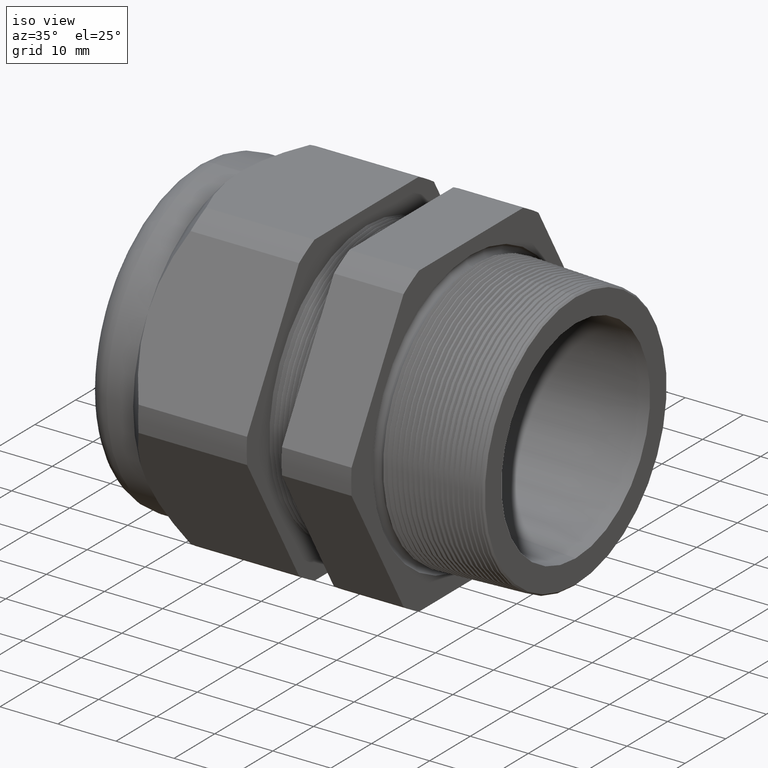
[diagram: clean part render]
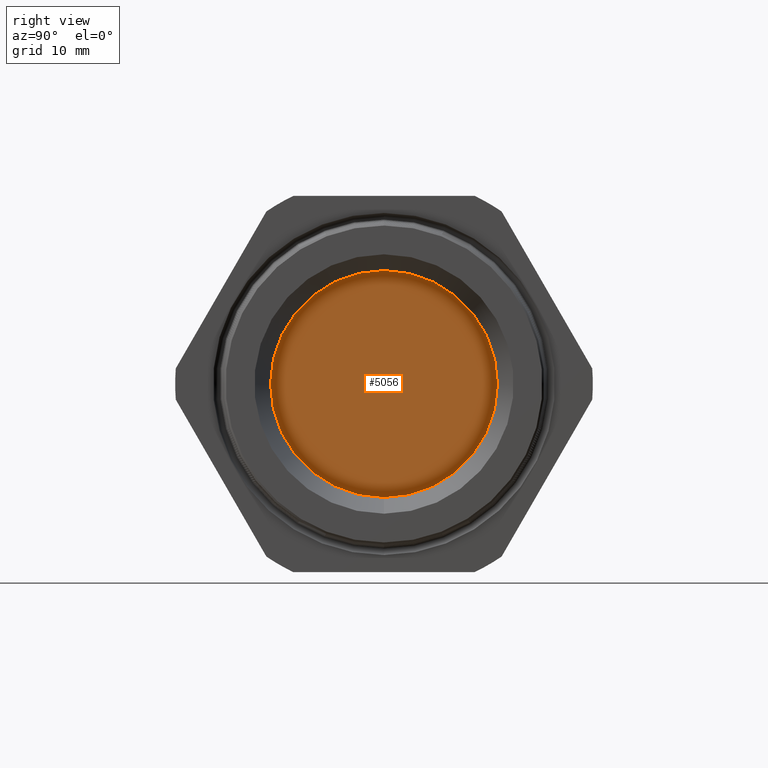
[diagram: tour spotlight — one face highlighted and labeled with its STEP entity id]
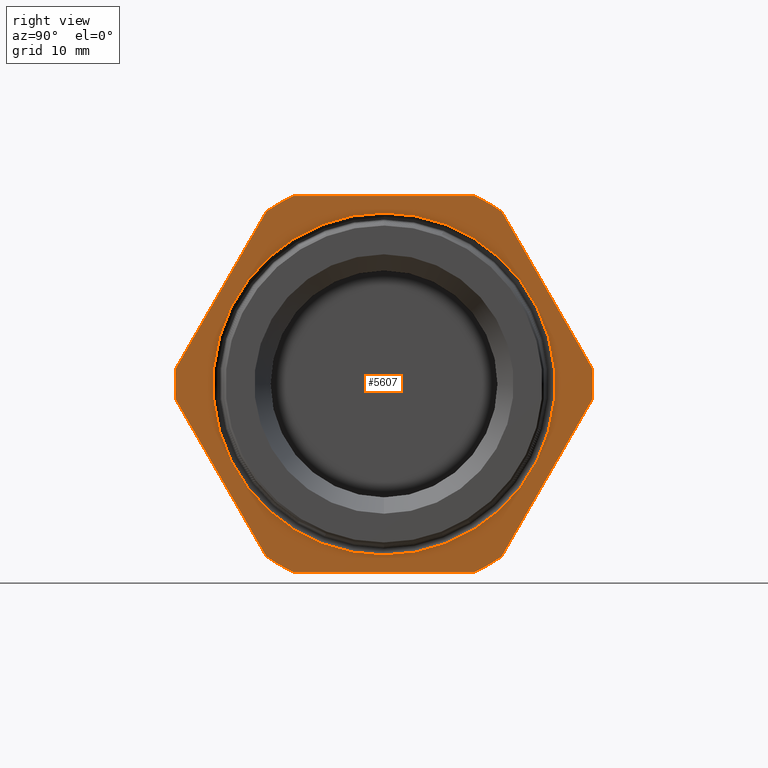
[diagram: tour spotlight — one face highlighted and labeled with its STEP entity id]
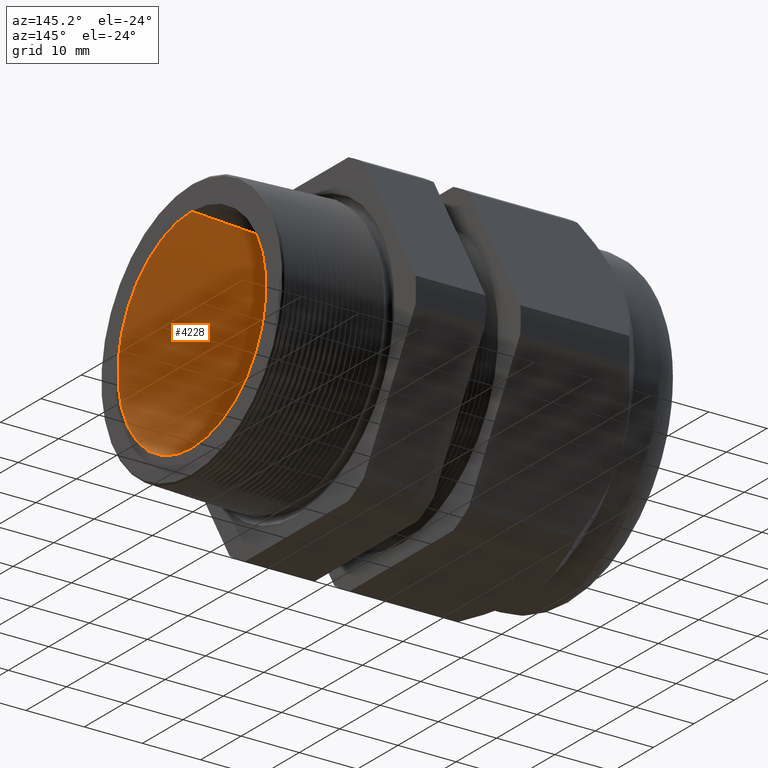
[diagram: tour spotlight — one face highlighted and labeled with its STEP entity id]
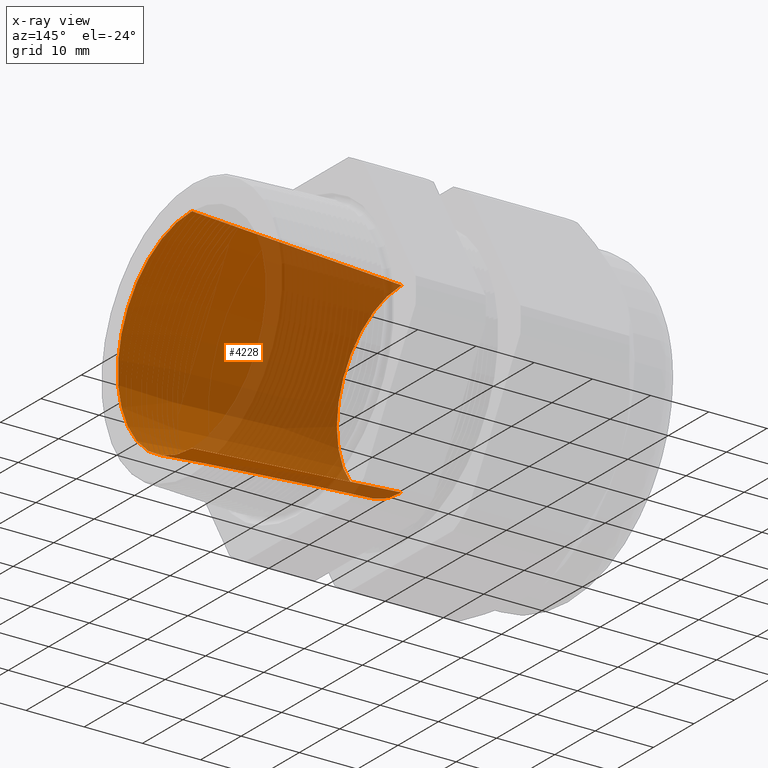
[diagram: x-ray of the same camera — body ghosted, this tour face saturated]
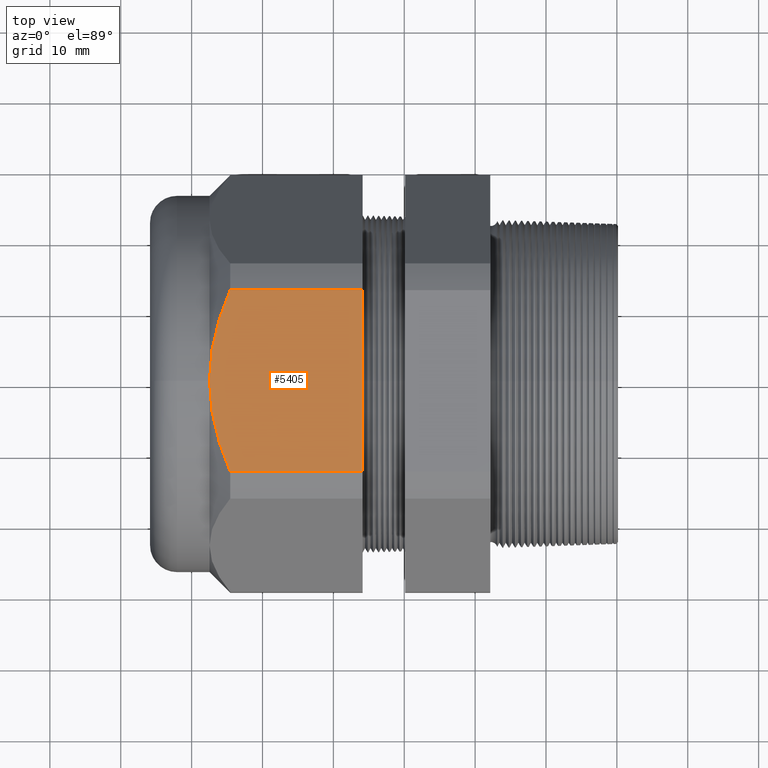
[diagram: tour spotlight — one face highlighted and labeled with its STEP entity id]
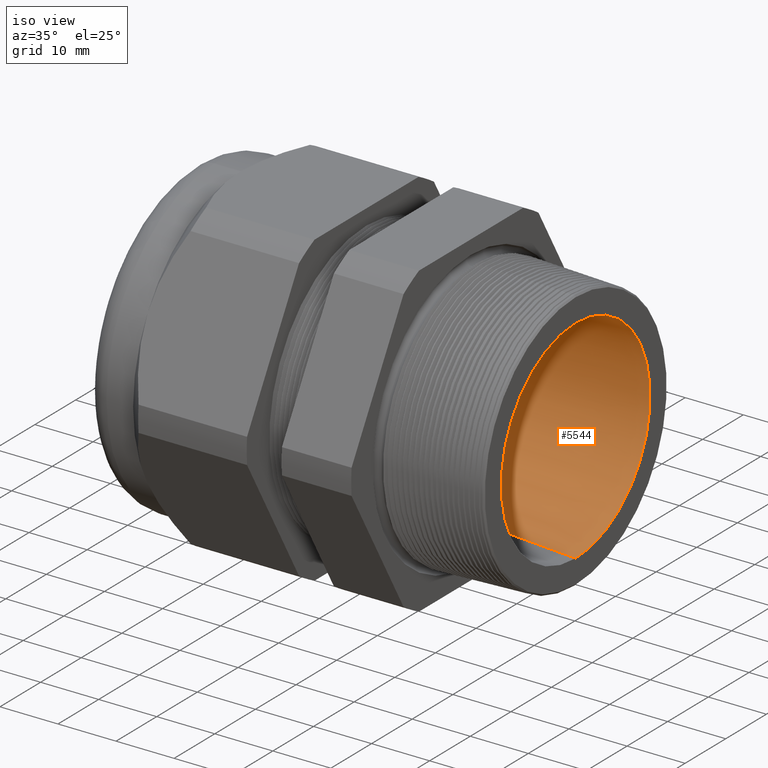
[diagram: tour spotlight — one face highlighted and labeled with its STEP entity id]
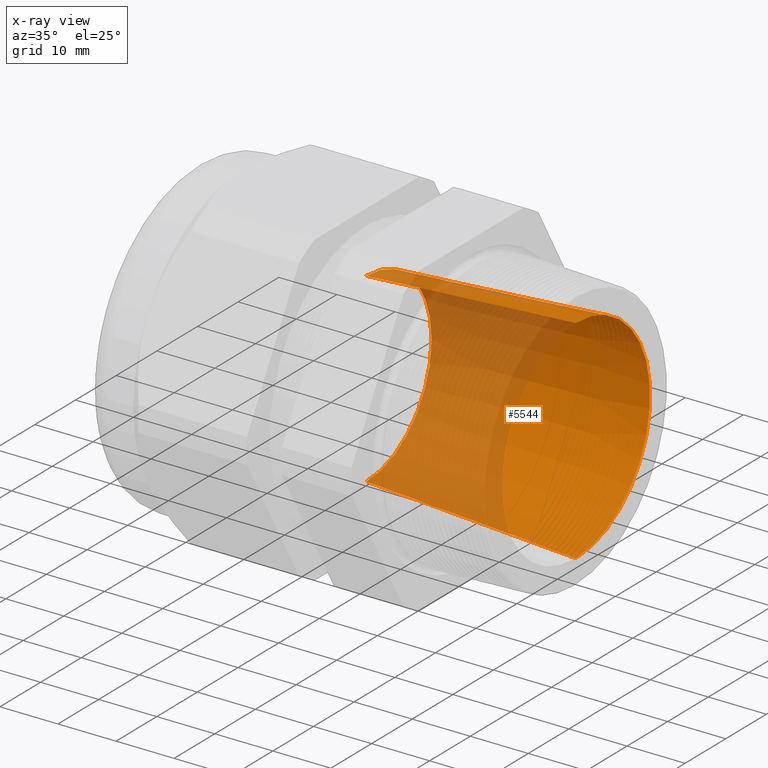
[diagram: x-ray of the same camera — body ghosted, this tour face saturated]
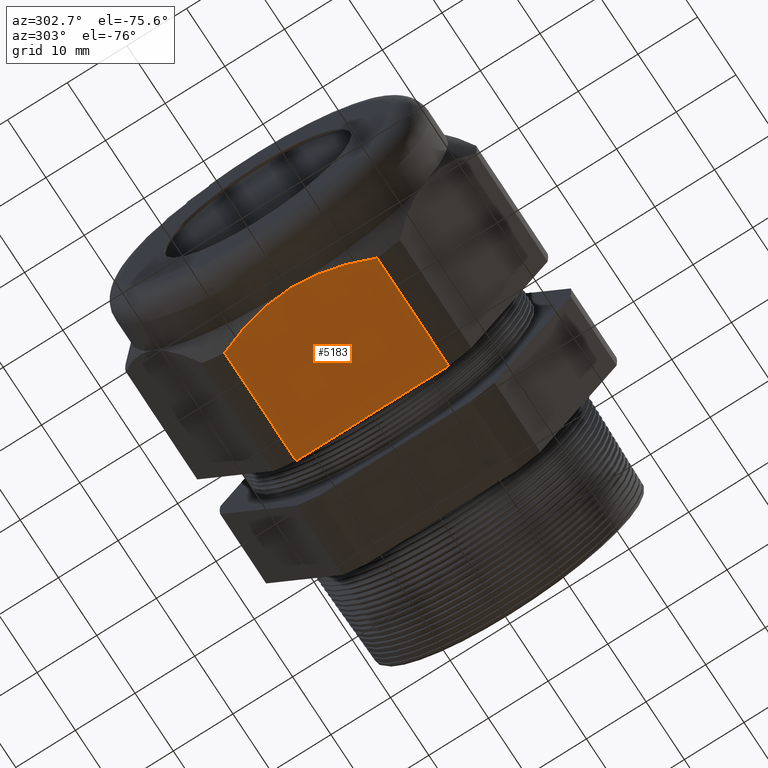
[diagram: tour spotlight — one face highlighted and labeled with its STEP entity id]
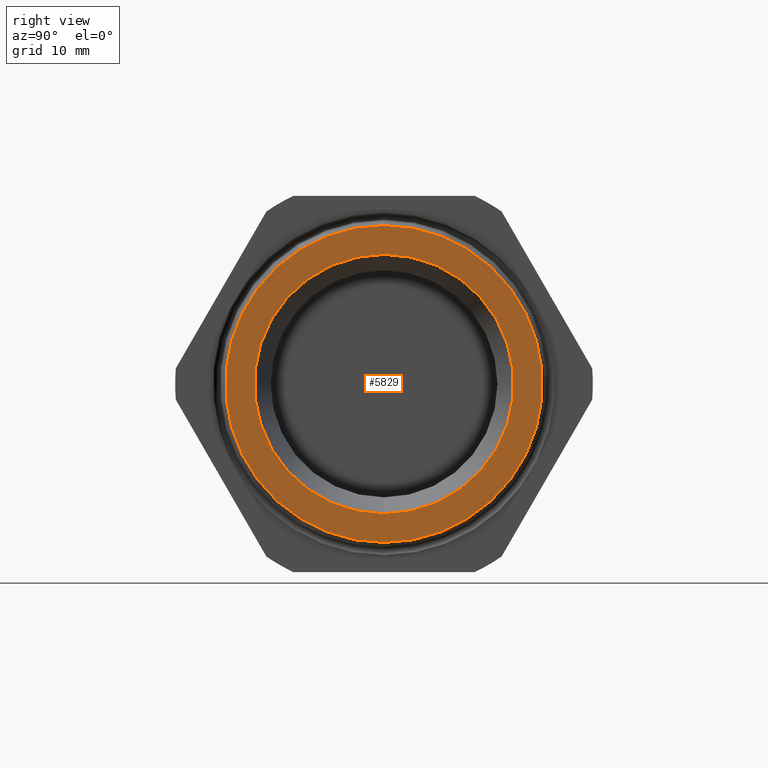
[diagram: tour spotlight — one face highlighted and labeled with its STEP entity id]
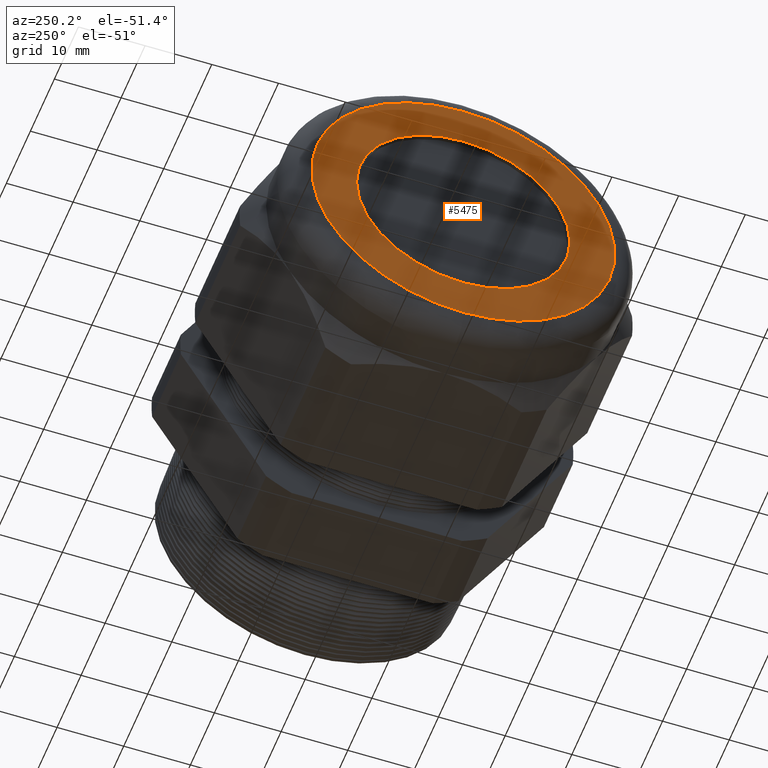
[diagram: tour spotlight — one face highlighted and labeled with its STEP entity id]
A machine part: a face-by-face anatomy tour. The part has 223 B-rep faces; the first image is the clean iso view, then the 8 largest visible faces are spotlighted one at a time (largest first), each with its STEP entity span.

Face 1 — right view, entity #5056. In plain terms, the highlighted planar face has unit normal (-1, 0, 0).
Definition (entity closure, byte-faithful):
#823 = CARTESIAN_POINT ( 'NONE',  ( -1.700000000000000000, 0.0000000000000000000, 0.6300000000000000000 ) ) ;
#829 = CARTESIAN_POINT ( 'NONE',  ( -1.700000000000000000, 7.715274834628325400E-017, -0.6300000000000000000 ) ) ;
#830 = DIRECTION ( 'NONE',  ( 0.0000000000000000000, 0.0000000000000000000, 1.000000000000000000 ) ) ;
#831 = DIRECTION ( 'NONE',  ( -1.000000000000000000, 0.0000000000000000000, 0.0000000000000000000 ) ) ;
#832 = CARTESIAN_POINT ( 'NONE',  ( -1.700000000000000000, 0.0000000000000000000, 0.0000000000000000000 ) ) ;
#833 = AXIS2_PLACEMENT_3D ( 'NONE', #832, #831, #830 ) ;
#838 = CIRCLE ( 'NONE', #833, 0.6300000000000000000 ) ;
#2211 = DIRECTION ( 'NONE',  ( 0.0000000000000000000, 0.0000000000000000000, 1.000000000000000000 ) ) ;
#2212 = DIRECTION ( 'NONE',  ( -1.000000000000000000, 0.0000000000000000000, 0.0000000000000000000 ) ) ;
#2213 = CARTESIAN_POINT ( 'NONE',  ( -1.700000000000000000, 0.0000000000000000000, 0.0000000000000000000 ) ) ;
#2214 = AXIS2_PLACEMENT_3D ( 'NONE', #2213, #2212, #2211 ) ;
#2215 = PLANE ( 'NONE',  #2214 ) ;
#2216 = FACE_OUTER_BOUND ( 'NONE', #5054, .T. ) ;
#2302 = DIRECTION ( 'NONE',  ( 0.0000000000000000000, 0.0000000000000000000, 1.000000000000000000 ) ) ;
#2303 = DIRECTION ( 'NONE',  ( -1.000000000000000000, 0.0000000000000000000, 0.0000000000000000000 ) ) ;
#2304 = CARTESIAN_POINT ( 'NONE',  ( -1.700000000000000000, 0.0000000000000000000, 0.0000000000000000000 ) ) ;
#2305 = AXIS2_PLACEMENT_3D ( 'NONE', #2304, #2303, #2302 ) ;
#2306 = CIRCLE ( 'NONE', #2305, 0.6300000000000000000 ) ;
#4196 = EDGE_CURVE ( 'NONE', #4207, #4201, #838, .T. ) ;
#4201 = VERTEX_POINT ( 'NONE', #829 ) ;
#4207 = VERTEX_POINT ( 'NONE', #823 ) ;
#5054 = EDGE_LOOP ( 'NONE', ( #5079, #5082 ) ) ;
#5056 = ADVANCED_FACE ( 'NONE', ( #2216 ), #2215, .F. ) ;
#5077 = EDGE_CURVE ( 'NONE', #4201, #4207, #2306, .T. ) ;
#5079 = ORIENTED_EDGE ( 'NONE', *, *, #4196, .F. ) ;
#5082 = ORIENTED_EDGE ( 'NONE', *, *, #5077, .F. ) ;

Face 2 — right view, entity #5607. In plain terms, the highlighted planar face has unit normal (1, 0, 0).
Definition (entity closure, byte-faithful):
#1799 = AXIS2_PLACEMENT_3D ( 'NONE', #1861, #1860, #1859 ) ;
#1800 = CIRCLE ( 'NONE', #1799, 1.159950000000000000 ) ;
#1813 = CARTESIAN_POINT ( 'NONE',  ( -0.3100000000000000000, 0.5034471198646395300, 1.044999999999999700 ) ) ;
#1819 = DIRECTION ( 'NONE',  ( 0.0000000000000000000, -1.000000000000000000, 0.0000000000000000000 ) ) ;
#1820 = VECTOR ( 'NONE', #1819, 39.37007874015748100 ) ;
#1821 = CARTESIAN_POINT ( 'NONE',  ( -0.3100000000000000000, 2.089999999999999900, 1.044999999999999700 ) ) ;
#1822 = LINE ( 'NONE', #1821, #1820 ) ;
#1823 = CARTESIAN_POINT ( 'NONE',  ( -0.3100000000000000000, -0.5034471198646400800, 1.044999999999999300 ) ) ;
#1848 = CARTESIAN_POINT ( 'NONE',  ( -0.3100000000000000000, 0.6532729870224199800, 0.9584979952648858800 ) ) ;
#1859 = DIRECTION ( 'NONE',  ( 0.0000000000000000000, 0.0000000000000000000, -1.000000000000000000 ) ) ;
#1860 = DIRECTION ( 'NONE',  ( 1.000000000000000000, 0.0000000000000000000, 0.0000000000000000000 ) ) ;
#1861 = CARTESIAN_POINT ( 'NONE',  ( -0.3100000000000000000, 0.0000000000000000000, 0.0000000000000000000 ) ) ;
#1874 = DIRECTION ( 'NONE',  ( 0.0000000000000000000, 0.0000000000000000000, -1.000000000000000000 ) ) ;
#1875 = DIRECTION ( 'NONE',  ( 1.000000000000000000, 0.0000000000000000000, 0.0000000000000000000 ) ) ;
#1876 = CARTESIAN_POINT ( 'NONE',  ( -0.3100000000000000000, 0.0000000000000000000, 0.0000000000000000000 ) ) ;
#1877 = AXIS2_PLACEMENT_3D ( 'NONE', #1876, #1875, #1874 ) ;
#1878 = CIRCLE ( 'NONE', #1877, 1.159950000000000000 ) ;
#1879 = DIRECTION ( 'NONE',  ( 0.0000000000000000000, -0.4999999999999998300, 0.8660254037844386000 ) ) ;
#1880 = VECTOR ( 'NONE', #1879, 39.37007874015748900 ) ;
#1881 = CARTESIAN_POINT ( 'NONE',  ( -0.3100000000000000000, 1.427496546954738300, -0.3824965469547381100 ) ) ;
#1882 = LINE ( 'NONE', #1881, #1880 ) ;
#1930 = CARTESIAN_POINT ( 'NONE',  ( -0.3100000000000000000, -0.5034471198646384100, -1.045000000000000200 ) ) ;
#1941 = DIRECTION ( 'NONE',  ( 0.0000000000000000000, 1.000000000000000000, 0.0000000000000000000 ) ) ;
#1942 = VECTOR ( 'NONE', #1941, 39.37007874015748100 ) ;
#1943 = CARTESIAN_POINT ( 'NONE',  ( -0.3100000000000000000, 2.089999999999999900, -1.045000000000000200 ) ) ;
#1944 = LINE ( 'NONE', #1943, #1942 ) ;
#1945 = CARTESIAN_POINT ( 'NONE',  ( -0.3100000000000000000, 0.5034471198646385300, -1.045000000000000200 ) ) ;
#1965 = DIRECTION ( 'NONE',  ( 0.0000000000000000000, 0.0000000000000000000, -1.000000000000000000 ) ) ;
#1966 = DIRECTION ( 'NONE',  ( 1.000000000000000000, 0.0000000000000000000, 0.0000000000000000000 ) ) ;
#1967 = CARTESIAN_POINT ( 'NONE',  ( -0.3100000000000000000, 0.0000000000000000000, 0.0000000000000000000 ) ) ;
#1968 = AXIS2_PLACEMENT_3D ( 'NONE', #1967, #1966, #1965 ) ;
#1969 = CIRCLE ( 'NONE', #1968, 1.159950000000000000 ) ;
#1970 = DIRECTION ( 'NONE',  ( 0.0000000000000000000, 0.5000000000000002200, -0.8660254037844383700 ) ) ;
#1971 = VECTOR ( 'NONE', #1970, 39.37007874015748100 ) ;
#1972 = CARTESIAN_POINT ( 'NONE',  ( -0.3100000000000000000, -0.3824965469547378400, -1.427496546954738500 ) ) ;
#1976 = LINE ( 'NONE', #1972, #1971 ) ;
#1986 = DIRECTION ( 'NONE',  ( 1.000000000000000000, 0.0000000000000000000, 0.0000000000000000000 ) ) ;
#1987 = CARTESIAN_POINT ( 'NONE',  ( -0.3100000000000000000, 0.0000000000000000000, 0.0000000000000000000 ) ) ;
#1988 = AXIS2_PLACEMENT_3D ( 'NONE', #1987, #1986, #2047 ) ;
#1993 = CIRCLE ( 'NONE', #1988, 1.159950000000000000 ) ;
#2007 = CARTESIAN_POINT ( 'NONE',  ( -0.3100000000000000000, -1.156720106887057800, -0.08650200473511345000 ) ) ;
#2008 = CARTESIAN_POINT ( 'NONE',  ( -0.3100000000000000000, -0.6532729870224186500, -0.9584979952648867700 ) ) ;
#2047 = DIRECTION ( 'NONE',  ( 0.0000000000000000000, 0.0000000000000000000, -1.000000000000000000 ) ) ;
#2677 = CARTESIAN_POINT ( 'NONE',  ( -0.3100000000000000000, 1.163278617641008500E-016, 0.9498890769574771500 ) ) ;
#2686 = CARTESIAN_POINT ( 'NONE',  ( -0.3100000000000000000, 0.0000000000000000000, -0.9498890769574771500 ) ) ;
#2712 = AXIS2_PLACEMENT_3D ( 'NONE', #2771, #2770, #2769 ) ;
#2713 = CIRCLE ( 'NONE', #2712, 0.9498890769574771500 ) ;
#2769 = DIRECTION ( 'NONE',  ( 0.0000000000000000000, 0.0000000000000000000, -1.000000000000000000 ) ) ;
#2770 = DIRECTION ( 'NONE',  ( 1.000000000000000000, 0.0000000000000000000, 0.0000000000000000000 ) ) ;
#2771 = CARTESIAN_POINT ( 'NONE',  ( -0.3100000000000000000, 0.0000000000000000000, 0.0000000000000000000 ) ) ;
#3167 = CARTESIAN_POINT ( 'NONE',  ( -0.3100000000000000000, 1.156720106887057600, 0.08650200473511453200 ) ) ;
#3169 = DIRECTION ( 'NONE',  ( 0.0000000000000000000, 0.0000000000000000000, -1.000000000000000000 ) ) ;
#3170 = DIRECTION ( 'NONE',  ( 1.000000000000000000, 0.0000000000000000000, 0.0000000000000000000 ) ) ;
#3171 = CARTESIAN_POINT ( 'NONE',  ( -0.3100000000000000000, 0.0000000000000000000, 0.0000000000000000000 ) ) ;
#3172 = AXIS2_PLACEMENT_3D ( 'NONE', #3171, #3170, #3169 ) ;
#3173 = CIRCLE ( 'NONE', #3172, 1.159950000000000000 ) ;
#3222 = CARTESIAN_POINT ( 'NONE',  ( -0.3100000000000000000, 1.156720106887057800, -0.08650200473511426800 ) ) ;
#3240 = VECTOR ( 'NONE', #3302, 39.37007874015748900 ) ;
#3241 = CARTESIAN_POINT ( 'NONE',  ( -0.3100000000000000000, 1.427496546954738500, 0.3824965469547380600 ) ) ;
#3247 = LINE ( 'NONE', #3241, #3240 ) ;
#3301 = CARTESIAN_POINT ( 'NONE',  ( -0.3100000000000000000, 0.6532729870224199800, -0.9584979952648857700 ) ) ;
#3302 = DIRECTION ( 'NONE',  ( 0.0000000000000000000, 0.4999999999999998300, 0.8660254037844386000 ) ) ;
#3303 = CIRCLE ( 'NONE', #3364, 1.159950000000000000 ) ;
#3309 = DIRECTION ( 'NONE',  ( 0.0000000000000000000, 0.0000000000000000000, -1.000000000000000000 ) ) ;
#3310 = DIRECTION ( 'NONE',  ( 1.000000000000000000, 0.0000000000000000000, 0.0000000000000000000 ) ) ;
#3311 = CARTESIAN_POINT ( 'NONE',  ( -0.3100000000000000000, 0.0000000000000000000, 0.0000000000000000000 ) ) ;
#3312 = AXIS2_PLACEMENT_3D ( 'NONE', #3311, #3310, #3309 ) ;
#3313 = CIRCLE ( 'NONE', #3312, 0.9498890769574771500 ) ;
#3332 = CARTESIAN_POINT ( 'NONE',  ( -0.3100000000000000000, -1.156720106887058100, 0.08650200473511256100 ) ) ;
#3348 = DIRECTION ( 'NONE',  ( 0.0000000000000000000, 0.0000000000000000000, -1.000000000000000000 ) ) ;
#3349 = DIRECTION ( 'NONE',  ( 1.000000000000000000, 0.0000000000000000000, 0.0000000000000000000 ) ) ;
#3350 = CARTESIAN_POINT ( 'NONE',  ( -0.3100000000000000000, 2.089999999999999900, 0.0000000000000000000 ) ) ;
#3351 = AXIS2_PLACEMENT_3D ( 'NONE', #3350, #3349, #3348 ) ;
#3352 = PLANE ( 'NONE',  #3351 ) ;
#3353 = FACE_OUTER_BOUND ( 'NONE', #5566, .T. ) ;
#3354 = FACE_BOUND ( 'NONE', #5591, .T. ) ;
#3361 = DIRECTION ( 'NONE',  ( 0.0000000000000000000, 0.0000000000000000000, -1.000000000000000000 ) ) ;
#3362 = DIRECTION ( 'NONE',  ( 1.000000000000000000, 0.0000000000000000000, 0.0000000000000000000 ) ) ;
#3363 = CARTESIAN_POINT ( 'NONE',  ( -0.3100000000000000000, 0.0000000000000000000, 0.0000000000000000000 ) ) ;
#3364 = AXIS2_PLACEMENT_3D ( 'NONE', #3363, #3362, #3361 ) ;
#3382 = CARTESIAN_POINT ( 'NONE',  ( -0.3100000000000000000, -0.6532729870224188700, 0.9584979952648864400 ) ) ;
#3415 = DIRECTION ( 'NONE',  ( 0.0000000000000000000, -0.4999999999999997200, -0.8660254037844388200 ) ) ;
#3416 = VECTOR ( 'NONE', #3415, 39.37007874015748100 ) ;
#3417 = CARTESIAN_POINT ( 'NONE',  ( -0.3100000000000000000, -0.3824965469547395000, 1.427496546954737800 ) ) ;
#3418 = LINE ( 'NONE', #3417, #3416 ) ;
#4762 = ORIENTED_EDGE ( 'NONE', *, *, #4906, .T. ) ;
#4763 = VERTEX_POINT ( 'NONE', #1823 ) ;
#4764 = ORIENTED_EDGE ( 'NONE', *, *, #4766, .T. ) ;
#4766 = EDGE_CURVE ( 'NONE', #4769, #4763, #1822, .T. ) ;
#4769 = VERTEX_POINT ( 'NONE', #1813 ) ;
#4776 = ORIENTED_EDGE ( 'NONE', *, *, #4777, .T. ) ;
#4777 = EDGE_CURVE ( 'NONE', #4782, #4769, #1800, .T. ) ;
#4782 = VERTEX_POINT ( 'NONE', #1848 ) ;
#4805 = EDGE_CURVE ( 'NONE', #5511, #4782, #1882, .T. ) ;
#4806 = ORIENTED_EDGE ( 'NONE', *, *, #4805, .T. ) ;
#4808 = EDGE_CURVE ( 'NONE', #4833, #5562, #1878, .T. ) ;
#4822 = ORIENTED_EDGE ( 'NONE', *, *, #4808, .T. ) ;
#4833 = VERTEX_POINT ( 'NONE', #1945 ) ;
#4839 = EDGE_CURVE ( 'NONE', #4850, #4833, #1944, .T. ) ;
#4849 = ORIENTED_EDGE ( 'NONE', *, *, #4839, .T. ) ;
#4850 = VERTEX_POINT ( 'NONE', #1930 ) ;
#4863 = ORIENTED_EDGE ( 'NONE', *, *, #4869, .T. ) ;
#4869 = EDGE_CURVE ( 'NONE', #4882, #4881, #1976, .T. ) ;
#4870 = EDGE_CURVE ( 'NONE', #4881, #4850, #1969, .T. ) ;
#4876 = ORIENTED_EDGE ( 'NONE', *, *, #4870, .T. ) ;
#4881 = VERTEX_POINT ( 'NONE', #2008 ) ;
#4882 = VERTEX_POINT ( 'NONE', #2007 ) ;
#4906 = EDGE_CURVE ( 'NONE', #4763, #5623, #1993, .T. ) ;
#5276 = VERTEX_POINT ( 'NONE', #2677 ) ;
#5300 = VERTEX_POINT ( 'NONE', #2686 ) ;
#5316 = EDGE_CURVE ( 'NONE', #5276, #5300, #2713, .T. ) ;
#5507 = EDGE_CURVE ( 'NONE', #5537, #5511, #3173, .T. ) ;
#5511 = VERTEX_POINT ( 'NONE', #3167 ) ;
#5528 = ORIENTED_EDGE ( 'NONE', *, *, #5507, .T. ) ;
#5537 = VERTEX_POINT ( 'NONE', #3222 ) ;
#5548 = ORIENTED_EDGE ( 'NONE', *, *, #5559, .T. ) ;
#5559 = EDGE_CURVE ( 'NONE', #5562, #5537, #3247, .T. ) ;
#5562 = VERTEX_POINT ( 'NONE', #3301 ) ;
#5566 = EDGE_LOOP ( 'NONE', ( #5548, #5528, #4806, #4776, #4764, #4762, #5634, #5584, #4863, #4876, #4849, #4822 ) ) ;
#5584 = ORIENTED_EDGE ( 'NONE', *, *, #5601, .T. ) ;
#5585 = VERTEX_POINT ( 'NONE', #3332 ) ;
#5587 = ORIENTED_EDGE ( 'NONE', *, *, #5316, .F. ) ;
#5591 = EDGE_LOOP ( 'NONE', ( #5598, #5587 ) ) ;
#5597 = EDGE_CURVE ( 'NONE', #5300, #5276, #3313, .T. ) ;
#5598 = ORIENTED_EDGE ( 'NONE', *, *, #5597, .F. ) ;
#5601 = EDGE_CURVE ( 'NONE', #5585, #4882, #3303, .T. ) ;
#5607 = ADVANCED_FACE ( 'NONE', ( #3354, #3353 ), #3352, .T. ) ;
#5623 = VERTEX_POINT ( 'NONE', #3382 ) ;
#5633 = EDGE_CURVE ( 'NONE', #5623, #5585, #3418, .T. ) ;
#5634 = ORIENTED_EDGE ( 'NONE', *, *, #5633, .T. ) ;

Face 3 — auxiliary view, entity #4228. An x-ray twin of the same camera follows (body ghosted, this face saturated) — the face is partly hidden behind the body. In plain terms, the highlighted conical surface has half-angle 3.648 deg.
Definition (entity closure, byte-faithful):
#849 = CONICAL_SURFACE ( 'NONE', #850, 0.6300000000000001200, 0.06366780490959177100 ) ;
#850 = AXIS2_PLACEMENT_3D ( 'NONE', #911, #910, #909 ) ;
#851 = FACE_OUTER_BOUND ( 'NONE', #4227, .T. ) ;
#852 = DIRECTION ( 'NONE',  ( 0.0000000000000000000, 0.0000000000000000000, -1.000000000000000000 ) ) ;
#853 = DIRECTION ( 'NONE',  ( 1.000000000000000000, 0.0000000000000000000, 0.0000000000000000000 ) ) ;
#854 = CARTESIAN_POINT ( 'NONE',  ( -1.018802799999999600, 0.0000000000000000000, 0.0000000000000000000 ) ) ;
#855 = AXIS2_PLACEMENT_3D ( 'NONE', #854, #853, #852 ) ;
#856 = CIRCLE ( 'NONE', #855, 0.6300000000000001200 ) ;
#863 = CARTESIAN_POINT ( 'NONE',  ( -1.018802799999999600, 7.715274834628326600E-017, 0.6300000000000001200 ) ) ;
#875 = CARTESIAN_POINT ( 'NONE',  ( -1.018802799999999600, 0.0000000000000000000, -0.6300000000000001200 ) ) ;
#909 = DIRECTION ( 'NONE',  ( 0.0000000000000000000, 0.0000000000000000000, -1.000000000000000000 ) ) ;
#910 = DIRECTION ( 'NONE',  ( 1.000000000000000000, 0.0000000000000000000, 0.0000000000000000000 ) ) ;
#911 = CARTESIAN_POINT ( 'NONE',  ( -1.018802799999999600, 0.0000000000000000000, 0.0000000000000000000 ) ) ;
#1011 = CARTESIAN_POINT ( 'NONE',  ( 0.3999999999999999700, 8.823020701438680900E-017, 0.7204543144669638400 ) ) ;
#1027 = DIRECTION ( 'NONE',  ( 0.0000000000000000000, 0.0000000000000000000, -1.000000000000000000 ) ) ;
#1028 = DIRECTION ( 'NONE',  ( 1.000000000000000000, 0.0000000000000000000, 0.0000000000000000000 ) ) ;
#1029 = CARTESIAN_POINT ( 'NONE',  ( 0.3999999999999999700, 0.0000000000000000000, 0.0000000000000000000 ) ) ;
#1030 = AXIS2_PLACEMENT_3D ( 'NONE', #1029, #1028, #1027 ) ;
#1031 = CIRCLE ( 'NONE', #1030, 0.7204543144669638400 ) ;
#1032 = CARTESIAN_POINT ( 'NONE',  ( 0.3999999999999999700, 0.0000000000000000000, -0.7204543144669638400 ) ) ;
#1033 = DIRECTION ( 'NONE',  ( 0.9979738898659472600, 0.0000000000000000000, -0.06362479977044976900 ) ) ;
#1034 = VECTOR ( 'NONE', #1033, 39.37007874015748900 ) ;
#1035 = CARTESIAN_POINT ( 'NONE',  ( -1.018802799999999600, 0.0000000000000000000, -0.6300000000000001200 ) ) ;
#1036 = LINE ( 'NONE', #1035, #1034 ) ;
#1060 = DIRECTION ( 'NONE',  ( 0.9979738898659472600, 7.791790738527256800E-018, 0.06362479977044976900 ) ) ;
#1061 = VECTOR ( 'NONE', #1060, 39.37007874015748900 ) ;
#1062 = CARTESIAN_POINT ( 'NONE',  ( -1.018802799999999600, 7.715274834628326600E-017, 0.6300000000000001200 ) ) ;
#1063 = LINE ( 'NONE', #1062, #1061 ) ;
#4212 = VERTEX_POINT ( 'NONE', #875 ) ;
#4223 = VERTEX_POINT ( 'NONE', #863 ) ;
#4225 = EDGE_CURVE ( 'NONE', #4223, #4212, #856, .T. ) ;
#4226 = ORIENTED_EDGE ( 'NONE', *, *, #4225, .F. ) ;
#4227 = EDGE_LOOP ( 'NONE', ( #4226, #4339, #4311, #4306 ) ) ;
#4228 = ADVANCED_FACE ( 'NONE', ( #851 ), #849, .F. ) ;
#4306 = ORIENTED_EDGE ( 'NONE', *, *, #4307, .F. ) ;
#4307 = EDGE_CURVE ( 'NONE', #4212, #4309, #1036, .T. ) ;
#4309 = VERTEX_POINT ( 'NONE', #1032 ) ;
#4310 = EDGE_CURVE ( 'NONE', #4319, #4309, #1031, .T. ) ;
#4311 = ORIENTED_EDGE ( 'NONE', *, *, #4310, .T. ) ;
#4319 = VERTEX_POINT ( 'NONE', #1011 ) ;
#4332 = EDGE_CURVE ( 'NONE', #4223, #4319, #1063, .T. ) ;
#4339 = ORIENTED_EDGE ( 'NONE', *, *, #4332, .T. ) ;

Face 4 — top view, entity #5405. In plain terms, the highlighted planar face has unit normal (0, 0, 1).
Definition (entity closure, byte-faithful):
#1047 = CARTESIAN_POINT ( 'NONE',  ( -1.869292000000000000, 0.0000000000000000000, 1.044999999999999700 ) ) ;
#2868 = CARTESIAN_POINT ( 'NONE',  ( -1.018802799999999600, 0.5034471198646395300, 1.044999999999999700 ) ) ;
#2897 = DIRECTION ( 'NONE',  ( 0.0000000000000000000, 0.0000000000000000000, 1.000000000000000000 ) ) ;
#2898 = CARTESIAN_POINT ( 'NONE',  ( 0.4000000000000000800, -0.5034471198646395300, 1.044999999999999700 ) ) ;
#2899 = AXIS2_PLACEMENT_3D ( 'NONE', #2898, #2897, #2960 ) ;
#2900 = PLANE ( 'NONE',  #2899 ) ;
#2901 = FACE_OUTER_BOUND ( 'NONE', #5394, .T. ) ;
#2930 = DIRECTION ( 'NONE',  ( -1.000000000000000000, 0.0000000000000000000, 0.0000000000000000000 ) ) ;
#2931 = VECTOR ( 'NONE', #2930, 39.37007874015748100 ) ;
#2932 = CARTESIAN_POINT ( 'NONE',  ( 0.4000000000000000800, -0.5034471198646400800, 1.044999999999999300 ) ) ;
#2933 = LINE ( 'NONE', #2932, #2931 ) ;
#2934 = CARTESIAN_POINT ( 'NONE',  ( -1.018802799999999600, -0.5034471198646400800, 1.044999999999999300 ) ) ;
#2954 = CARTESIAN_POINT ( 'NONE',  ( -1.754341999999999200, -0.5034471198646398600, 1.044999999999999700 ) ) ;
#2960 = DIRECTION ( 'NONE',  ( 1.000000000000000000, 0.0000000000000000000, 0.0000000000000000000 ) ) ;
#3003 = DIRECTION ( 'NONE',  ( 0.0000000000000000000, -1.000000000000000000, 0.0000000000000000000 ) ) ;
#3004 = VECTOR ( 'NONE', #3003, 39.37007874015748100 ) ;
#3005 = CARTESIAN_POINT ( 'NONE',  ( -1.018802799999999600, 0.9399999999999999500, 1.044999999999999700 ) ) ;
#3006 = LINE ( 'NONE', #3005, #3004 ) ;
#3023 = CARTESIAN_POINT ( 'NONE',  ( -1.754341999999999600, 0.5034471198646395300, 1.044999999999999700 ) ) ;
#3024 = DIRECTION ( 'NONE',  ( -1.000000000000000000, 0.0000000000000000000, 0.0000000000000000000 ) ) ;
#3025 = VECTOR ( 'NONE', #3024, 39.37007874015748100 ) ;
#3026 = CARTESIAN_POINT ( 'NONE',  ( 0.4000000000000000800, 0.5034471198646395300, 1.044999999999999700 ) ) ;
#3027 = LINE ( 'NONE', #3026, #3025 ) ;
#3055 = CARTESIAN_POINT ( 'NONE',  ( -1.869292000000000000, 0.0000000000000000000, 1.044999999999999700 ) ) ;
#3056 = CARTESIAN_POINT ( 'NONE',  ( -1.869291999999999300, 0.02182873446798883800, 1.044999999999999500 ) ) ;
#3057 = CARTESIAN_POINT ( 'NONE',  ( -1.868601348862168200, 0.04373691554683271200, 1.044999999999999300 ) ) ;
#3058 = CARTESIAN_POINT ( 'NONE',  ( -1.865889267300421900, 0.08713363206265308000, 1.044999999999999700 ) ) ;
#3059 = CARTESIAN_POINT ( 'NONE',  ( -1.863869075271275000, 0.1087024430698540500, 1.044999999999999300 ) ) ;
#3060 = CARTESIAN_POINT ( 'NONE',  ( -1.855917652805892500, 0.1730400535522957100, 1.044999999999999500 ) ) ;
#3061 = CARTESIAN_POINT ( 'NONE',  ( -1.848093749831172200, 0.2154396742832509200, 1.044999999999999300 ) ) ;
#3062 = CARTESIAN_POINT ( 'NONE',  ( -1.828018536546962800, 0.2993753196147933000, 1.044999999999999300 ) ) ;
#3063 = CARTESIAN_POINT ( 'NONE',  ( -1.815769846189893700, 0.3409118552550480800, 1.044999999999999300 ) ) ;
#3064 = CARTESIAN_POINT ( 'NONE',  ( -1.794564483841139000, 0.4026641939678185000, 1.044999999999999500 ) ) ;
#3065 = CARTESIAN_POINT ( 'NONE',  ( -1.787018621072149300, 0.4231631440832466800, 1.044999999999999000 ) ) ;
#3066 = CARTESIAN_POINT ( 'NONE',  ( -1.771216119577154500, 0.4636207977166997800, 1.044999999999999700 ) ) ;
#3067 = CARTESIAN_POINT ( 'NONE',  ( -1.762942910033210600, 0.4836304892804666500, 1.044999999999999700 ) ) ;
#3068 = CARTESIAN_POINT ( 'NONE',  ( -1.754341999999999600, 0.5034471198646395300, 1.044999999999999700 ) ) ;
#3073 = B_SPLINE_CURVE_WITH_KNOTS ( 'NONE', 3,
 ( #3068, #3067, #3066, #3065, #3064, #3063, #3062, #3061, #3060, #3059, #3058, #3057, #3056, #3055 ),
 .UNSPECIFIED., .F., .F.,
 ( 4, 2, 2, 2, 2, 2, 4 ),
 ( 0.02039820435195575600, 0.02203190909537085200, 0.02366561383878594500, 0.02693302332561614200, 0.03020043281244633500, 0.03183413755586143200, 0.03346784229927653200 ),
 .UNSPECIFIED. ) ;
#3075 = CARTESIAN_POINT ( 'NONE',  ( -1.754341999999999200, -0.5034471198646398600, 1.044999999999999700 ) ) ;
#3076 = CARTESIAN_POINT ( 'NONE',  ( -1.771541667379293400, -0.4638188185209418100, 1.044999999999999500 ) ) ;
#3077 = CARTESIAN_POINT ( 'NONE',  ( -1.787425944234738900, -0.4234483023531743200, 1.044999999999999700 ) ) ;
#3078 = CARTESIAN_POINT ( 'NONE',  ( -1.815810422140070600, -0.3407977905260954900, 1.044999999999999500 ) ) ;
#3079 = CARTESIAN_POINT ( 'NONE',  ( -1.828087416907577100, -0.2991342696643452500, 1.044999999999999300 ) ) ;
#3080 = CARTESIAN_POINT ( 'NONE',  ( -1.858213035920961700, -0.1730359448115065300, 1.044999999999999700 ) ) ;
#3081 = CARTESIAN_POINT ( 'NONE',  ( -1.869291999999999300, -0.08745202795108882000, 1.044999999999999700 ) ) ;
#3082 = CARTESIAN_POINT ( 'NONE',  ( -1.869292000000000000, 0.0000000000000000000, 1.044999999999999700 ) ) ;
#3084 = B_SPLINE_CURVE_WITH_KNOTS ( 'NONE', 3,
 ( #3082, #3081, #3080, #3079, #3078, #3077, #3076, #3075 ),
 .UNSPECIFIED., .F., .F.,
 ( 4, 2, 2, 4 ),
 ( 0.03346784229927653200, 0.04001292135983690300, 0.04328546089011708900, 0.04655800042039726800 ),
 .UNSPECIFIED. ) ;
#4342 = VERTEX_POINT ( 'NONE', #1047 ) ;
#5386 = ORIENTED_EDGE ( 'NONE', *, *, #5459, .T. ) ;
#5388 = VERTEX_POINT ( 'NONE', #2868 ) ;
#5394 = EDGE_LOOP ( 'NONE', ( #5386, #5458, #5464, #5448, #5449 ) ) ;
#5405 = ADVANCED_FACE ( 'NONE', ( #2901 ), #2900, .T. ) ;
#5411 = VERTEX_POINT ( 'NONE', #2954 ) ;
#5418 = VERTEX_POINT ( 'NONE', #2934 ) ;
#5424 = EDGE_CURVE ( 'NONE', #5418, #5411, #2933, .T. ) ;
#5445 = EDGE_CURVE ( 'NONE', #5388, #5418, #3006, .T. ) ;
#5448 = ORIENTED_EDGE ( 'NONE', *, *, #5424, .F. ) ;
#5449 = ORIENTED_EDGE ( 'NONE', *, *, #5445, .F. ) ;
#5458 = ORIENTED_EDGE ( 'NONE', *, *, #5463, .T. ) ;
#5459 = EDGE_CURVE ( 'NONE', #5388, #5460, #3027, .T. ) ;
#5460 = VERTEX_POINT ( 'NONE', #3023 ) ;
#5461 = EDGE_CURVE ( 'NONE', #4342, #5411, #3084, .T. ) ;
#5463 = EDGE_CURVE ( 'NONE', #5460, #4342, #3073, .T. ) ;
#5464 = ORIENTED_EDGE ( 'NONE', *, *, #5461, .T. ) ;

Face 5 — iso view, entity #5544. An x-ray twin of the same camera follows (body ghosted, this face saturated) — the face is partly hidden behind the body. In plain terms, the highlighted conical surface has half-angle 3.648 deg.
Definition (entity closure, byte-faithful):
#863 = CARTESIAN_POINT ( 'NONE',  ( -1.018802799999999600, 7.715274834628326600E-017, 0.6300000000000001200 ) ) ;
#875 = CARTESIAN_POINT ( 'NONE',  ( -1.018802799999999600, 0.0000000000000000000, -0.6300000000000001200 ) ) ;
#1011 = CARTESIAN_POINT ( 'NONE',  ( 0.3999999999999999700, 8.823020701438680900E-017, 0.7204543144669638400 ) ) ;
#1032 = CARTESIAN_POINT ( 'NONE',  ( 0.3999999999999999700, 0.0000000000000000000, -0.7204543144669638400 ) ) ;
#1033 = DIRECTION ( 'NONE',  ( 0.9979738898659472600, 0.0000000000000000000, -0.06362479977044976900 ) ) ;
#1034 = VECTOR ( 'NONE', #1033, 39.37007874015748900 ) ;
#1035 = CARTESIAN_POINT ( 'NONE',  ( -1.018802799999999600, 0.0000000000000000000, -0.6300000000000001200 ) ) ;
#1036 = LINE ( 'NONE', #1035, #1034 ) ;
#1060 = DIRECTION ( 'NONE',  ( 0.9979738898659472600, 7.791790738527256800E-018, 0.06362479977044976900 ) ) ;
#1061 = VECTOR ( 'NONE', #1060, 39.37007874015748900 ) ;
#1062 = CARTESIAN_POINT ( 'NONE',  ( -1.018802799999999600, 7.715274834628326600E-017, 0.6300000000000001200 ) ) ;
#1063 = LINE ( 'NONE', #1062, #1061 ) ;
#3210 = CARTESIAN_POINT ( 'NONE',  ( -1.018802799999999600, 0.0000000000000000000, 0.0000000000000000000 ) ) ;
#3211 = FACE_OUTER_BOUND ( 'NONE', #5535, .T. ) ;
#3227 = DIRECTION ( 'NONE',  ( 0.0000000000000000000, 0.0000000000000000000, -1.000000000000000000 ) ) ;
#3228 = DIRECTION ( 'NONE',  ( 1.000000000000000000, 0.0000000000000000000, 0.0000000000000000000 ) ) ;
#3229 = CARTESIAN_POINT ( 'NONE',  ( -1.018802799999999600, 0.0000000000000000000, 0.0000000000000000000 ) ) ;
#3230 = AXIS2_PLACEMENT_3D ( 'NONE', #3229, #3228, #3227 ) ;
#3231 = CIRCLE ( 'NONE', #3230, 0.6300000000000001200 ) ;
#3267 = DIRECTION ( 'NONE',  ( 0.0000000000000000000, 0.0000000000000000000, -1.000000000000000000 ) ) ;
#3268 = DIRECTION ( 'NONE',  ( 1.000000000000000000, 0.0000000000000000000, 0.0000000000000000000 ) ) ;
#3269 = AXIS2_PLACEMENT_3D ( 'NONE', #3210, #3268, #3267 ) ;
#3270 = CONICAL_SURFACE ( 'NONE', #3269, 0.6300000000000001200, 0.06366780490959177100 ) ;
#3760 = DIRECTION ( 'NONE',  ( 0.0000000000000000000, 0.0000000000000000000, -1.000000000000000000 ) ) ;
#3761 = DIRECTION ( 'NONE',  ( 1.000000000000000000, 0.0000000000000000000, 0.0000000000000000000 ) ) ;
#3762 = CARTESIAN_POINT ( 'NONE',  ( 0.3999999999999999700, 0.0000000000000000000, 0.0000000000000000000 ) ) ;
#3763 = AXIS2_PLACEMENT_3D ( 'NONE', #3762, #3761, #3760 ) ;
#3764 = CIRCLE ( 'NONE', #3763, 0.7204543144669638400 ) ;
#4212 = VERTEX_POINT ( 'NONE', #875 ) ;
#4223 = VERTEX_POINT ( 'NONE', #863 ) ;
#4307 = EDGE_CURVE ( 'NONE', #4212, #4309, #1036, .T. ) ;
#4309 = VERTEX_POINT ( 'NONE', #1032 ) ;
#4319 = VERTEX_POINT ( 'NONE', #1011 ) ;
#4332 = EDGE_CURVE ( 'NONE', #4223, #4319, #1063, .T. ) ;
#5533 = EDGE_CURVE ( 'NONE', #4212, #4223, #3231, .T. ) ;
#5535 = EDGE_LOOP ( 'NONE', ( #5846, #5841, #5842, #5840 ) ) ;
#5544 = ADVANCED_FACE ( 'NONE', ( #3211 ), #3270, .F. ) ;
#5838 = EDGE_CURVE ( 'NONE', #4309, #4319, #3764, .T. ) ;
#5840 = ORIENTED_EDGE ( 'NONE', *, *, #5838, .T. ) ;
#5841 = ORIENTED_EDGE ( 'NONE', *, *, #5533, .F. ) ;
#5842 = ORIENTED_EDGE ( 'NONE', *, *, #4307, .T. ) ;
#5846 = ORIENTED_EDGE ( 'NONE', *, *, #4332, .F. ) ;

Face 6 — auxiliary view, entity #5183. In plain terms, the highlighted planar face has unit normal (0, 0, -1).
Definition (entity closure, byte-faithful):
#918 = DIRECTION ( 'NONE',  ( -1.000000000000000000, 0.0000000000000000000, 0.0000000000000000000 ) ) ;
#919 = VECTOR ( 'NONE', #918, 39.37007874015748100 ) ;
#1158 = CARTESIAN_POINT ( 'NONE',  ( -1.869292000000000000, 0.0000000000000000000, -1.045000000000000200 ) ) ;
#2431 = CARTESIAN_POINT ( 'NONE',  ( 0.4000000000000000800, -0.5034471198646384100, -1.045000000000000200 ) ) ;
#2432 = LINE ( 'NONE', #2431, #919 ) ;
#2480 = DIRECTION ( 'NONE',  ( -1.000000000000000000, 0.0000000000000000000, 0.0000000000000000000 ) ) ;
#2481 = DIRECTION ( 'NONE',  ( 0.0000000000000000000, 0.0000000000000000000, -1.000000000000000000 ) ) ;
#2482 = CARTESIAN_POINT ( 'NONE',  ( 0.4000000000000000800, 0.5034471198646384100, -1.045000000000000200 ) ) ;
#2483 = AXIS2_PLACEMENT_3D ( 'NONE', #2482, #2481, #2480 ) ;
#2485 = PLANE ( 'NONE',  #2483 ) ;
#2486 = FACE_OUTER_BOUND ( 'NONE', #5188, .T. ) ;
#2487 = CARTESIAN_POINT ( 'NONE',  ( -1.018802799999999600, -0.5034471198646384100, -1.045000000000000200 ) ) ;
#2489 = CARTESIAN_POINT ( 'NONE',  ( -1.754341999999999600, -0.5034471198646384100, -1.045000000000000200 ) ) ;
#2524 = CARTESIAN_POINT ( 'NONE',  ( -1.018802799999999600, 0.5034471198646385300, -1.045000000000000200 ) ) ;
#2557 = B_SPLINE_CURVE_WITH_KNOTS ( 'NONE', 3,
 ( #2613, #2612, #2611, #2610, #2609, #2608, #2607, #2606, #2605, #2604, #2603, #2602, #2601, #2600 ),
 .UNSPECIFIED., .F., .F.,
 ( 4, 2, 2, 2, 2, 2, 4 ),
 ( 0.03087839258829215600, 0.03251280974861869100, 0.03414722690894522700, 0.03741606122959829900, 0.04068489555025136400, 0.04231931271057790000, 0.04395372987090443600 ),
 .UNSPECIFIED. ) ;
#2566 = DIRECTION ( 'NONE',  ( 0.0000000000000000000, 1.000000000000000000, 0.0000000000000000000 ) ) ;
#2567 = VECTOR ( 'NONE', #2566, 39.37007874015748100 ) ;
#2568 = CARTESIAN_POINT ( 'NONE',  ( -1.018802799999999600, 0.9399999999999999500, -1.045000000000000200 ) ) ;
#2569 = LINE ( 'NONE', #2568, #2567 ) ;
#2576 = CARTESIAN_POINT ( 'NONE',  ( -1.754341999999999600, 0.5034471198646385300, -1.045000000000000200 ) ) ;
#2577 = DIRECTION ( 'NONE',  ( -1.000000000000000000, 0.0000000000000000000, 0.0000000000000000000 ) ) ;
#2578 = VECTOR ( 'NONE', #2577, 39.37007874015748100 ) ;
#2579 = CARTESIAN_POINT ( 'NONE',  ( 0.4000000000000000800, 0.5034471198646385300, -1.045000000000000200 ) ) ;
#2580 = LINE ( 'NONE', #2579, #2578 ) ;
#2593 = B_SPLINE_CURVE_WITH_KNOTS ( 'NONE', 3,
 ( #2647, #2646, #2645, #2644, #2643, #2642, #2641, #2640 ),
 .UNSPECIFIED., .F., .F.,
 ( 4, 2, 2, 4 ),
 ( 0.01778252618355628500, 0.02105649278474025500, 0.02433045938592422500, 0.03087839258829215600 ),
 .UNSPECIFIED. ) ;
#2600 = CARTESIAN_POINT ( 'NONE',  ( -1.754341999999999600, 0.5034471198646385300, -1.045000000000000200 ) ) ;
#2601 = CARTESIAN_POINT ( 'NONE',  ( -1.762942910033209700, 0.4836304892804657600, -1.045000000000000400 ) ) ;
#2602 = CARTESIAN_POINT ( 'NONE',  ( -1.771216119577154500, 0.4636207977166991200, -1.045000000000000400 ) ) ;
#2603 = CARTESIAN_POINT ( 'NONE',  ( -1.787018621072149700, 0.4231631440832460700, -1.045000000000000200 ) ) ;
#2604 = CARTESIAN_POINT ( 'NONE',  ( -1.794564483841139000, 0.4026641939678179400, -1.045000000000000200 ) ) ;
#2605 = CARTESIAN_POINT ( 'NONE',  ( -1.815769846189894100, 0.3409118552550476900, -1.045000000000000200 ) ) ;
#2606 = CARTESIAN_POINT ( 'NONE',  ( -1.828018536546963000, 0.2993753196147929700, -1.045000000000000400 ) ) ;
#2607 = CARTESIAN_POINT ( 'NONE',  ( -1.848093749831171400, 0.2154396742832505600, -1.044999999999999900 ) ) ;
#2608 = CARTESIAN_POINT ( 'NONE',  ( -1.855917652805891800, 0.1730400535522953500, -1.044999999999999900 ) ) ;
#2609 = CARTESIAN_POINT ( 'NONE',  ( -1.863869075271275000, 0.1087024430698538700, -1.045000000000000400 ) ) ;
#2610 = CARTESIAN_POINT ( 'NONE',  ( -1.865889267300421500, 0.08713363206265292700, -1.045000000000000200 ) ) ;
#2611 = CARTESIAN_POINT ( 'NONE',  ( -1.868601348862167600, 0.04373691554683274000, -1.045000000000000200 ) ) ;
#2612 = CARTESIAN_POINT ( 'NONE',  ( -1.869291999999999100, 0.02182873446798865400, -1.045000000000000200 ) ) ;
#2613 = CARTESIAN_POINT ( 'NONE',  ( -1.869292000000000000, 0.0000000000000000000, -1.045000000000000200 ) ) ;
#2640 = CARTESIAN_POINT ( 'NONE',  ( -1.869292000000000000, 0.0000000000000000000, -1.045000000000000200 ) ) ;
#2641 = CARTESIAN_POINT ( 'NONE',  ( -1.869291999999999100, -0.08745202795108866800, -1.045000000000000200 ) ) ;
#2642 = CARTESIAN_POINT ( 'NONE',  ( -1.858213035920961700, -0.1730359448115058300, -1.045000000000000400 ) ) ;
#2643 = CARTESIAN_POINT ( 'NONE',  ( -1.828087416907577400, -0.2991342696643440300, -1.045000000000000200 ) ) ;
#2644 = CARTESIAN_POINT ( 'NONE',  ( -1.815810422140070600, -0.3407977905260938800, -1.045000000000000200 ) ) ;
#2645 = CARTESIAN_POINT ( 'NONE',  ( -1.787425944234739100, -0.4234483023531723800, -1.045000000000000200 ) ) ;
#2646 = CARTESIAN_POINT ( 'NONE',  ( -1.771541667379293600, -0.4638188185209400300, -1.045000000000000200 ) ) ;
#2647 = CARTESIAN_POINT ( 'NONE',  ( -1.754341999999999600, -0.5034471198646384100, -1.045000000000000200 ) ) ;
#4386 = VERTEX_POINT ( 'NONE', #1158 ) ;
#5176 = EDGE_CURVE ( 'NONE', #5181, #5178, #2432, .T. ) ;
#5178 = VERTEX_POINT ( 'NONE', #2489 ) ;
#5181 = VERTEX_POINT ( 'NONE', #2487 ) ;
#5183 = ADVANCED_FACE ( 'NONE', ( #2486 ), #2485, .T. ) ;
#5184 = ORIENTED_EDGE ( 'NONE', *, *, #5176, .T. ) ;
#5188 = EDGE_LOOP ( 'NONE', ( #5184, #5258, #5249, #5226, #5225 ) ) ;
#5225 = ORIENTED_EDGE ( 'NONE', *, *, #5243, .F. ) ;
#5226 = ORIENTED_EDGE ( 'NONE', *, *, #5239, .F. ) ;
#5237 = VERTEX_POINT ( 'NONE', #2524 ) ;
#5239 = EDGE_CURVE ( 'NONE', #5237, #5240, #2580, .T. ) ;
#5240 = VERTEX_POINT ( 'NONE', #2576 ) ;
#5243 = EDGE_CURVE ( 'NONE', #5181, #5237, #2569, .T. ) ;
#5249 = ORIENTED_EDGE ( 'NONE', *, *, #5250, .T. ) ;
#5250 = EDGE_CURVE ( 'NONE', #4386, #5240, #2557, .T. ) ;
#5258 = ORIENTED_EDGE ( 'NONE', *, *, #5262, .T. ) ;
#5262 = EDGE_CURVE ( 'NONE', #5178, #4386, #2593, .T. ) ;

Face 7 — right view, entity #5829. In plain terms, the highlighted planar face has unit normal (1, 0, 0).
Definition (entity closure, byte-faithful):
#800 = CARTESIAN_POINT ( 'NONE',  ( 0.3999999999999999700, 0.0000000000000000000, 0.8800861549141793000 ) ) ;
#845 = CARTESIAN_POINT ( 'NONE',  ( 0.3999999999999999700, 1.084357057078877500E-016, -0.8800861549141793000 ) ) ;
#1011 = CARTESIAN_POINT ( 'NONE',  ( 0.3999999999999999700, 8.823020701438680900E-017, 0.7204543144669638400 ) ) ;
#1027 = DIRECTION ( 'NONE',  ( 0.0000000000000000000, 0.0000000000000000000, -1.000000000000000000 ) ) ;
#1028 = DIRECTION ( 'NONE',  ( 1.000000000000000000, 0.0000000000000000000, 0.0000000000000000000 ) ) ;
#1029 = CARTESIAN_POINT ( 'NONE',  ( 0.3999999999999999700, 0.0000000000000000000, 0.0000000000000000000 ) ) ;
#1030 = AXIS2_PLACEMENT_3D ( 'NONE', #1029, #1028, #1027 ) ;
#1031 = CIRCLE ( 'NONE', #1030, 0.7204543144669638400 ) ;
#1032 = CARTESIAN_POINT ( 'NONE',  ( 0.3999999999999999700, 0.0000000000000000000, -0.7204543144669638400 ) ) ;
#3644 = DIRECTION ( 'NONE',  ( 0.0000000000000000000, 0.0000000000000000000, -1.000000000000000000 ) ) ;
#3645 = DIRECTION ( 'NONE',  ( 1.000000000000000000, 0.0000000000000000000, 0.0000000000000000000 ) ) ;
#3646 = CARTESIAN_POINT ( 'NONE',  ( 0.3999999999999999700, 0.0000000000000000000, 0.0000000000000000000 ) ) ;
#3647 = AXIS2_PLACEMENT_3D ( 'NONE', #3646, #3645, #3644 ) ;
#3648 = CIRCLE ( 'NONE', #3647, 0.8800861549141793000 ) ;
#3716 = CARTESIAN_POINT ( 'NONE',  ( 0.3999999999999999700, 0.7204543144669638400, 0.0000000000000000000 ) ) ;
#3717 = AXIS2_PLACEMENT_3D ( 'NONE', #3716, #3778, #3777 ) ;
#3718 = FACE_BOUND ( 'NONE', #5820, .T. ) ;
#3719 = FACE_OUTER_BOUND ( 'NONE', #5827, .T. ) ;
#3723 = PLANE ( 'NONE',  #3717 ) ;
#3760 = DIRECTION ( 'NONE',  ( 0.0000000000000000000, 0.0000000000000000000, -1.000000000000000000 ) ) ;
#3761 = DIRECTION ( 'NONE',  ( 1.000000000000000000, 0.0000000000000000000, 0.0000000000000000000 ) ) ;
#3762 = CARTESIAN_POINT ( 'NONE',  ( 0.3999999999999999700, 0.0000000000000000000, 0.0000000000000000000 ) ) ;
#3763 = AXIS2_PLACEMENT_3D ( 'NONE', #3762, #3761, #3760 ) ;
#3764 = CIRCLE ( 'NONE', #3763, 0.7204543144669638400 ) ;
#3765 = DIRECTION ( 'NONE',  ( 0.0000000000000000000, 0.0000000000000000000, -1.000000000000000000 ) ) ;
#3766 = DIRECTION ( 'NONE',  ( 1.000000000000000000, 0.0000000000000000000, 0.0000000000000000000 ) ) ;
#3767 = CARTESIAN_POINT ( 'NONE',  ( 0.3999999999999999700, 0.0000000000000000000, 0.0000000000000000000 ) ) ;
#3768 = AXIS2_PLACEMENT_3D ( 'NONE', #3767, #3766, #3765 ) ;
#3769 = CIRCLE ( 'NONE', #3768, 0.8800861549141793000 ) ;
#3777 = DIRECTION ( 'NONE',  ( 0.0000000000000000000, 0.0000000000000000000, -1.000000000000000000 ) ) ;
#3778 = DIRECTION ( 'NONE',  ( 1.000000000000000000, 0.0000000000000000000, 0.0000000000000000000 ) ) ;
#4177 = VERTEX_POINT ( 'NONE', #800 ) ;
#4193 = VERTEX_POINT ( 'NONE', #845 ) ;
#4309 = VERTEX_POINT ( 'NONE', #1032 ) ;
#4310 = EDGE_CURVE ( 'NONE', #4319, #4309, #1031, .T. ) ;
#4319 = VERTEX_POINT ( 'NONE', #1011 ) ;
#5762 = EDGE_CURVE ( 'NONE', #4193, #4177, #3648, .T. ) ;
#5817 = ORIENTED_EDGE ( 'NONE', *, *, #5838, .F. ) ;
#5818 = ORIENTED_EDGE ( 'NONE', *, *, #4310, .F. ) ;
#5820 = EDGE_LOOP ( 'NONE', ( #5817, #5818 ) ) ;
#5827 = EDGE_LOOP ( 'NONE', ( #5831, #5836 ) ) ;
#5829 = ADVANCED_FACE ( 'NONE', ( #3719, #3718 ), #3723, .T. ) ;
#5831 = ORIENTED_EDGE ( 'NONE', *, *, #5837, .T. ) ;
#5836 = ORIENTED_EDGE ( 'NONE', *, *, #5762, .T. ) ;
#5837 = EDGE_CURVE ( 'NONE', #4177, #4193, #3769, .T. ) ;
#5838 = EDGE_CURVE ( 'NONE', #4309, #4319, #3764, .T. ) ;

Face 8 — auxiliary view, entity #5475. In plain terms, the highlighted planar face has unit normal (-1, 0, 0).
Definition (entity closure, byte-faithful):
#922 = DIRECTION ( 'NONE',  ( 0.0000000000000000000, 0.0000000000000000000, 1.000000000000000000 ) ) ;
#923 = DIRECTION ( 'NONE',  ( -1.000000000000000000, 0.0000000000000000000, 0.0000000000000000000 ) ) ;
#924 = CARTESIAN_POINT ( 'NONE',  ( -2.199999999999999700, 0.0000000000000000000, 0.0000000000000000000 ) ) ;
#925 = AXIS2_PLACEMENT_3D ( 'NONE', #924, #923, #922 ) ;
#930 = CIRCLE ( 'NONE', #925, 0.8949999999999998000 ) ;
#933 = CARTESIAN_POINT ( 'NONE',  ( -2.199999999999999700, 0.0000000000000000000, 0.8949999999999998000 ) ) ;
#948 = CARTESIAN_POINT ( 'NONE',  ( -2.199999999999999700, 1.187907395172932200E-016, -0.8949999999999998000 ) ) ;
#979 = DIRECTION ( 'NONE',  ( 0.0000000000000000000, 0.0000000000000000000, -1.000000000000000000 ) ) ;
#980 = DIRECTION ( 'NONE',  ( 1.000000000000000000, 0.0000000000000000000, 0.0000000000000000000 ) ) ;
#981 = CARTESIAN_POINT ( 'NONE',  ( -2.199999999999999700, 0.0000000000000000000, 0.0000000000000000000 ) ) ;
#982 = AXIS2_PLACEMENT_3D ( 'NONE', #981, #980, #979 ) ;
#983 = CIRCLE ( 'NONE', #982, 0.6300000000000000000 ) ;
#984 = CARTESIAN_POINT ( 'NONE',  ( -2.199999999999999700, 7.715274834628325400E-017, 0.6300000000000000000 ) ) ;
#1000 = CARTESIAN_POINT ( 'NONE',  ( -2.199999999999999700, 0.0000000000000000000, -0.6300000000000000000 ) ) ;
#3028 = DIRECTION ( 'NONE',  ( 0.0000000000000000000, 0.0000000000000000000, 1.000000000000000000 ) ) ;
#3029 = DIRECTION ( 'NONE',  ( -1.000000000000000000, 0.0000000000000000000, 0.0000000000000000000 ) ) ;
#3030 = AXIS2_PLACEMENT_3D ( 'NONE', #3037, #3029, #3028 ) ;
#3031 = CIRCLE ( 'NONE', #3030, 0.8949999999999998000 ) ;
#3037 = CARTESIAN_POINT ( 'NONE',  ( -2.199999999999999700, 0.0000000000000000000, 0.0000000000000000000 ) ) ;
#3105 = DIRECTION ( 'NONE',  ( 0.0000000000000000000, 0.0000000000000000000, 1.000000000000000000 ) ) ;
#3106 = DIRECTION ( 'NONE',  ( -1.000000000000000000, 0.0000000000000000000, 0.0000000000000000000 ) ) ;
#3107 = CARTESIAN_POINT ( 'NONE',  ( -2.199999999999999700, 1.044999999999999900, 0.0000000000000000000 ) ) ;
#3108 = AXIS2_PLACEMENT_3D ( 'NONE', #3107, #3106, #3105 ) ;
#3109 = PLANE ( 'NONE',  #3108 ) ;
#3110 = FACE_BOUND ( 'NONE', #5446, .T. ) ;
#3111 = FACE_OUTER_BOUND ( 'NONE', #5395, .T. ) ;
#3743 = DIRECTION ( 'NONE',  ( 0.0000000000000000000, 0.0000000000000000000, -1.000000000000000000 ) ) ;
#3744 = DIRECTION ( 'NONE',  ( 1.000000000000000000, 0.0000000000000000000, 0.0000000000000000000 ) ) ;
#3745 = CARTESIAN_POINT ( 'NONE',  ( -2.199999999999999700, 0.0000000000000000000, 0.0000000000000000000 ) ) ;
#3746 = AXIS2_PLACEMENT_3D ( 'NONE', #3745, #3744, #3743 ) ;
#3747 = CIRCLE ( 'NONE', #3746, 0.6300000000000000000 ) ;
#4255 = VERTEX_POINT ( 'NONE', #933 ) ;
#4258 = EDGE_CURVE ( 'NONE', #4255, #4284, #930, .T. ) ;
#4284 = VERTEX_POINT ( 'NONE', #948 ) ;
#4290 = VERTEX_POINT ( 'NONE', #1000 ) ;
#4301 = VERTEX_POINT ( 'NONE', #984 ) ;
#4302 = EDGE_CURVE ( 'NONE', #4301, #4290, #983, .T. ) ;
#5384 = ORIENTED_EDGE ( 'NONE', *, *, #4258, .T. ) ;
#5395 = EDGE_LOOP ( 'NONE', ( #5384, #5457 ) ) ;
#5446 = EDGE_LOOP ( 'NONE', ( #5809, #5815 ) ) ;
#5456 = EDGE_CURVE ( 'NONE', #4284, #4255, #3031, .T. ) ;
#5457 = ORIENTED_EDGE ( 'NONE', *, *, #5456, .T. ) ;
#5475 = ADVANCED_FACE ( 'NONE', ( #3111, #3110 ), #3109, .T. ) ;
#5809 = ORIENTED_EDGE ( 'NONE', *, *, #5814, .T. ) ;
#5814 = EDGE_CURVE ( 'NONE', #4290, #4301, #3747, .T. ) ;
#5815 = ORIENTED_EDGE ( 'NONE', *, *, #4302, .T. ) ;